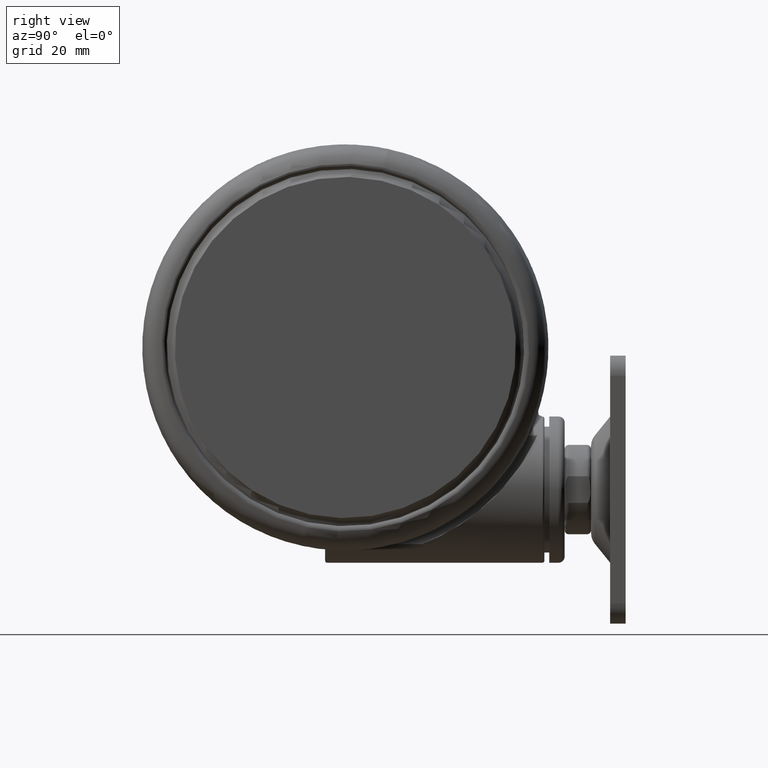
[diagram: clean part render]
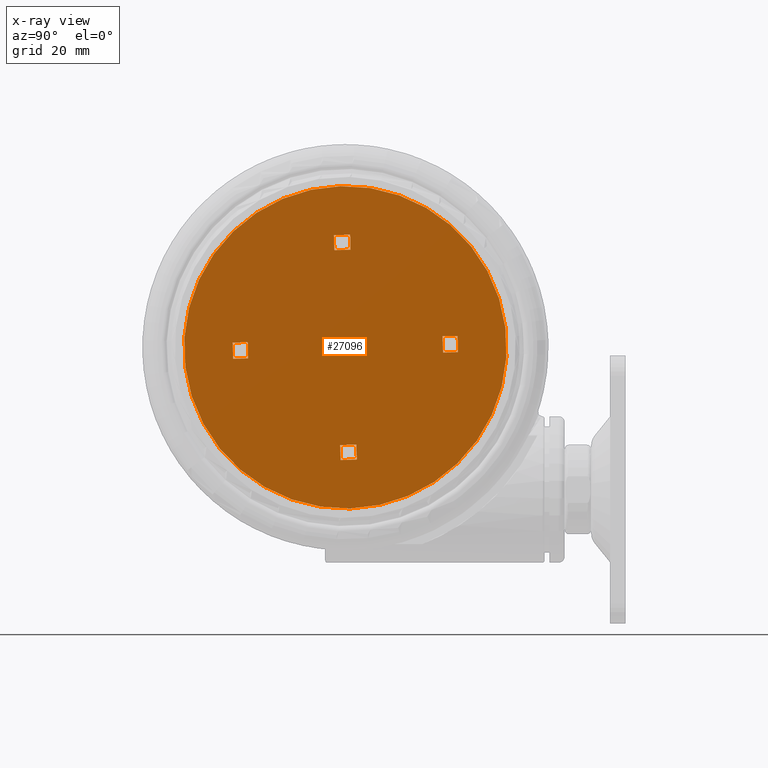
[diagram: x-ray — body ghosted, one internal face saturated and labeled with its STEP entity id]
A machine part, right view, then the same camera in x-ray: the body is ghosted and one INTERNAL B-rep face — a face not visible from any outside direction — is saturated and labeled: STEP entity #27096.
In plain terms, the highlighted planar face has unit normal (-1, 0, 0).
Its self-contained STEP definition (entity closure, byte-faithful):
#398 = LINE ( 'NONE', #24734, #64697 ) ;
#892 = VECTOR ( 'NONE', #59341, 1000.000000000000200 ) ;
#2642 = PLANE ( 'NONE',  #12645 ) ;
#3243 = CARTESIAN_POINT ( 'NONE',  ( 8.546799343271272800, -26.42426179229321500, -63.39999999999989900 ) ) ;
#3586 = ORIENTED_EDGE ( 'NONE', *, *, #72621, .T. ) ;
#4057 = VECTOR ( 'NONE', #74137, 1000.000000000000200 ) ;
#4760 = VERTEX_POINT ( 'NONE', #41470 ) ;
#5000 = VERTEX_POINT ( 'NONE', #33181 ) ;
#5075 = EDGE_LOOP ( 'NONE', ( #13655, #3586, #29585, #13600 ) ) ;
#5366 = DIRECTION ( 'NONE',  ( -0.9711594515430745900, -0.2384309536921631300, 0.0000000000000000000 ) ) ;
#5914 = EDGE_CURVE ( 'NONE', #25020, #5000, #62885, .T. ) ;
#6096 = AXIS2_PLACEMENT_3D ( 'NONE', #44219, #8024, #50301 ) ;
#6276 = EDGE_CURVE ( 'NONE', #75866, #50173, #398, .T. ) ;
#7168 = VERTEX_POINT ( 'NONE', #16708 ) ;
#8024 = DIRECTION ( 'NONE',  ( 0.0000000000000000000, -0.0000000000000000000, 1.000000000000000000 ) ) ;
#8043 = DIRECTION ( 'NONE',  ( -0.9711594515430751500, -0.2384309536921608000, 1.807003620808588200E-016 ) ) ;
#8955 = VECTOR ( 'NONE', #23244, 1000.000000000000100 ) ;
#9048 = EDGE_CURVE ( 'NONE', #50173, #60263, #9074, .T. ) ;
#9074 = LINE ( 'NONE', #35816, #55412 ) ;
#9714 = DIRECTION ( 'NONE',  ( 0.2384309536921630800, -0.9711594515430745900, 1.807003620808557600E-016 ) ) ;
#9999 = VECTOR ( 'NONE', #53687, 1000.000000000000100 ) ;
#10547 = ORIENTED_EDGE ( 'NONE', *, *, #69614, .T. ) ;
#11002 = FACE_BOUND ( 'NONE', #5075, .T. ) ;
#11098 = CARTESIAN_POINT ( 'NONE',  ( -7.664718768786188200, 22.83095803771524900, -63.39999999999989900 ) ) ;
#11454 = CARTESIAN_POINT ( 'NONE',  ( -22.83102190673762200, -7.664668683632365600, -63.39999999999989900 ) ) ;
#11525 = ORIENTED_EDGE ( 'NONE', *, *, #59049, .T. ) ;
#12645 = AXIS2_PLACEMENT_3D ( 'NONE', #44904, #50987, #14820 ) ;
#12714 = ORIENTED_EDGE ( 'NONE', *, *, #44203, .F. ) ;
#12881 = VERTEX_POINT ( 'NONE', #50981 ) ;
#13359 = DIRECTION ( 'NONE',  ( 0.2384309536921608000, -0.9711594515430751500, 0.0000000000000000000 ) ) ;
#13600 = ORIENTED_EDGE ( 'NONE', *, *, #68325, .F. ) ;
#13655 = ORIENTED_EDGE ( 'NONE', *, *, #26456, .T. ) ;
#14169 = CARTESIAN_POINT ( 'NONE',  ( 0.4768049302962262800, -1.942325795020454000, -63.39999999999989900 ) ) ;
#14403 = CARTESIAN_POINT ( 'NONE',  ( 23.78463176732993700, 3.780017093591610400, -63.39999999999989900 ) ) ;
#14820 = DIRECTION ( 'NONE',  ( -0.9711594515430747000, -0.2384309536921631100, 0.0000000000000000000 ) ) ;
#16708 = CARTESIAN_POINT ( 'NONE',  ( 22.83090795257815100, 7.664654899767533000, -63.39999999999989900 ) ) ;
#17117 = CARTESIAN_POINT ( 'NONE',  ( -7.664718768786188200, 22.83095803771524900, -63.39999999999989900 ) ) ;
#17215 = LINE ( 'NONE', #29017, #51226 ) ;
#17515 = CIRCLE ( 'NONE', #64473, 39.70000000001356000 ) ;
#17620 = DIRECTION ( 'NONE',  ( -0.9711594515430745900, -0.2384309536921630800, 0.0000000000000000000 ) ) ;
#18677 = DIRECTION ( 'NONE',  ( 0.9711594515430745900, 0.2384309536921630800, 0.0000000000000000000 ) ) ;
#18768 = VERTEX_POINT ( 'NONE', #48523 ) ;
#18980 = VECTOR ( 'NONE', #49830, 1000.000000000000100 ) ;
#19033 = VERTEX_POINT ( 'NONE', #63745 ) ;
#20505 = VECTOR ( 'NONE', #13359, 1000.000000000000000 ) ;
#20881 = CIRCLE ( 'NONE', #6096, 39.70000000001356000 ) ;
#23244 = DIRECTION ( 'NONE',  ( 0.9711594515430773700, 0.2384309536921521400, 1.807003620808514200E-016 ) ) ;
#23890 = EDGE_CURVE ( 'NONE', #60263, #49494, #77450, .T. ) ;
#23893 = VECTOR ( 'NONE', #41035, 1000.000000000000000 ) ;
#24734 = CARTESIAN_POINT ( 'NONE',  ( -6.604594394361160200, 26.90110991580910800, -63.39999999999989900 ) ) ;
#25020 = VERTEX_POINT ( 'NONE', #47289 ) ;
#26456 = EDGE_CURVE ( 'NONE', #64011, #35415, #38453, .T. ) ;
#27096 = ADVANCED_FACE ( 'NONE', ( #43097, #59153, #11002, #73301, #57275 ), #2642, .F. ) ;
#27937 = LINE ( 'NONE', #47584, #9999 ) ;
#28433 = ORIENTED_EDGE ( 'NONE', *, *, #6276, .T. ) ;
#29017 = CARTESIAN_POINT ( 'NONE',  ( 1.942261925997973400, 0.4768550154500353400, -63.39999999999989900 ) ) ;
#29024 = VERTEX_POINT ( 'NONE', #3243 ) ;
#29585 = ORIENTED_EDGE ( 'NONE', *, *, #33573, .T. ) ;
#30123 = EDGE_CURVE ( 'NONE', #29024, #25020, #36946, .T. ) ;
#30336 = VERTEX_POINT ( 'NONE', #14403 ) ;
#31504 = CARTESIAN_POINT ( 'NONE',  ( 17.24460620613448100, 45.93648831284585300, -63.39999999999989900 ) ) ;
#31986 = ORIENTED_EDGE ( 'NONE', *, *, #54771, .T. ) ;
#32383 = VECTOR ( 'NONE', #9714, 1000.000000000000200 ) ;
#32636 = VECTOR ( 'NONE', #66930, 1000.000000000000000 ) ;
#33181 = CARTESIAN_POINT ( 'NONE',  ( 3.779967008437912200, -23.78469563635259100, -63.39999999999989900 ) ) ;
#33573 = EDGE_CURVE ( 'NONE', #30336, #7168, #36438, .T. ) ;
#34323 = LINE ( 'NONE', #45895, #32383 ) ;
#35415 = VERTEX_POINT ( 'NONE', #55243 ) ;
#35816 = CARTESIAN_POINT ( 'NONE',  ( 1.942261925997973400, 0.4768550154500353400, -63.39999999999989900 ) ) ;
#36184 = LINE ( 'NONE', #68049, #4057 ) ;
#36215 = CARTESIAN_POINT ( 'NONE',  ( -1.942375880174318500, -0.4768687993186582200, -63.39999999999989900 ) ) ;
#36438 = LINE ( 'NONE', #36565, #32636 ) ;
#36565 = CARTESIAN_POINT ( 'NONE',  ( 22.83090795257815100, 7.664654899767533000, -63.39999999999989900 ) ) ;
#36603 = CARTESIAN_POINT ( 'NONE',  ( -27.37803569221568300, -4.662225406121066000, -63.39999999999989900 ) ) ;
#36862 = ORIENTED_EDGE ( 'NONE', *, *, #23890, .T. ) ;
#36946 = LINE ( 'NONE', #47716, #53078 ) ;
#38453 = LINE ( 'NONE', #31504, #20505 ) ;
#39951 = LINE ( 'NONE', #65057, #23893 ) ;
#40093 = VERTEX_POINT ( 'NONE', #51036 ) ;
#41035 = DIRECTION ( 'NONE',  ( -0.9711594515430751500, -0.2384309536921608000, 1.807003620808588200E-016 ) ) ;
#41346 = CARTESIAN_POINT ( 'NONE',  ( -23.78474572150630800, -3.780030877460069900, -63.39999999999989900 ) ) ;
#41470 = CARTESIAN_POINT ( 'NONE',  ( 7.664604814610398400, -22.83097182158384100, -63.39999999999989900 ) ) ;
#41571 = DIRECTION ( 'NONE',  ( 0.0000000000000000000, -0.0000000000000000000, 1.000000000000000000 ) ) ;
#41713 = CARTESIAN_POINT ( 'NONE',  ( 0.4768049302962262800, -1.942325795020460900, -63.39999999999989900 ) ) ;
#41940 = EDGE_CURVE ( 'NONE', #12881, #63143, #27937, .T. ) ;
#42329 = DIRECTION ( 'NONE',  ( -0.2384309536921630800, 0.9711594515430745900, 1.807003620808557600E-016 ) ) ;
#43097 = FACE_BOUND ( 'NONE', #51786, .T. ) ;
#43902 = ORIENTED_EDGE ( 'NONE', *, *, #41940, .T. ) ;
#44203 = EDGE_CURVE ( 'NONE', #75866, #49494, #34323, .T. ) ;
#44219 = CARTESIAN_POINT ( 'NONE',  ( -5.697708817253843700E-005, -6.891934311442637900E-006, -63.39999999999989900 ) ) ;
#44904 = CARTESIAN_POINT ( 'NONE',  ( -9.656510601621093300, 39.33195089556051700, -63.39999999999989900 ) ) ;
#44935 = VECTOR ( 'NONE', #42329, 1000.000000000000200 ) ;
#45895 = CARTESIAN_POINT ( 'NONE',  ( -1.942375880174318500, -0.4768687993186582200, -63.39999999999989900 ) ) ;
#47289 = CARTESIAN_POINT ( 'NONE',  ( 4.662161537098863400, -27.37798560706180200, -63.39999999999989900 ) ) ;
#47584 = CARTESIAN_POINT ( 'NONE',  ( -36.55762740936399500, 32.72741347828758100, -63.39999999999989900 ) ) ;
#47716 = CARTESIAN_POINT ( 'NONE',  ( 6.604480440185356300, -26.90112369967766200, -63.39999999999989900 ) ) ;
#47983 = DIRECTION ( 'NONE',  ( 0.2384309536921630800, -0.9711594515430745900, 1.807003620808557600E-016 ) ) ;
#48523 = CARTESIAN_POINT ( 'NONE',  ( -22.83102190673762200, -7.664668683632365600, -63.39999999999989900 ) ) ;
#49370 = ORIENTED_EDGE ( 'NONE', *, *, #76419, .F. ) ;
#49494 = VERTEX_POINT ( 'NONE', #11098 ) ;
#49531 = LINE ( 'NONE', #11454, #63689 ) ;
#49588 = ORIENTED_EDGE ( 'NONE', *, *, #9048, .T. ) ;
#49830 = DIRECTION ( 'NONE',  ( 0.9711594515430773700, 0.2384309536921521400, 1.807003620808514200E-016 ) ) ;
#50085 = VERTEX_POINT ( 'NONE', #41346 ) ;
#50173 = VERTEX_POINT ( 'NONE', #78263 ) ;
#50301 = DIRECTION ( 'NONE',  ( -0.9711594515430745900, -0.2384309536921631300, 0.0000000000000000000 ) ) ;
#50981 = CARTESIAN_POINT ( 'NONE',  ( -26.42431187744699600, -8.546863212293358100, -63.39999999999989900 ) ) ;
#50987 = DIRECTION ( 'NONE',  ( -0.0000000000000000000, 0.0000000000000000000, -1.000000000000000000 ) ) ;
#51036 = CARTESIAN_POINT ( 'NONE',  ( -38.55508720336140300, -9.465715753516420200, -63.40000000000004100 ) ) ;
#51226 = VECTOR ( 'NONE', #72336, 1000.000000000000200 ) ;
#51786 = EDGE_LOOP ( 'NONE', ( #43902, #10547, #63647, #49370 ) ) ;
#52074 = CARTESIAN_POINT ( 'NONE',  ( 26.42419792328717800, 8.546849428428473100, -63.39999999999989900 ) ) ;
#52910 = CARTESIAN_POINT ( 'NONE',  ( -8.546913297447499500, 26.42424800842446700, -63.39999999999989900 ) ) ;
#53040 = LINE ( 'NONE', #73833, #18980 ) ;
#53078 = VECTOR ( 'NONE', #17620, 1000.000000000000200 ) ;
#53687 = DIRECTION ( 'NONE',  ( -0.2384309536921521400, 0.9711594515430773700, 0.0000000000000000000 ) ) ;
#54771 = EDGE_CURVE ( 'NONE', #5000, #4760, #36184, .T. ) ;
#55243 = CARTESIAN_POINT ( 'NONE',  ( 27.37792173804044900, 4.662211622252804100, -63.39999999999989900 ) ) ;
#55374 = EDGE_CURVE ( 'NONE', #19033, #40093, #20881, .T. ) ;
#55400 = VECTOR ( 'NONE', #8043, 1000.000000000000000 ) ;
#55412 = VECTOR ( 'NONE', #47983, 1000.000000000000200 ) ;
#55851 = ORIENTED_EDGE ( 'NONE', *, *, #5914, .T. ) ;
#57275 = FACE_OUTER_BOUND ( 'NONE', #60594, .T. ) ;
#59046 = LINE ( 'NONE', #41713, #8955 ) ;
#59049 = EDGE_CURVE ( 'NONE', #40093, #19033, #17515, .T. ) ;
#59153 = FACE_BOUND ( 'NONE', #69880, .T. ) ;
#59341 = DIRECTION ( 'NONE',  ( -0.9711594515430745900, -0.2384309536921630800, -0.0000000000000000000 ) ) ;
#60263 = VERTEX_POINT ( 'NONE', #73345 ) ;
#60594 = EDGE_LOOP ( 'NONE', ( #11525, #72464 ) ) ;
#61771 = EDGE_CURVE ( 'NONE', #29024, #4760, #17215, .T. ) ;
#61872 = EDGE_LOOP ( 'NONE', ( #28433, #49588, #36862, #12714 ) ) ;
#62885 = LINE ( 'NONE', #36215, #44935 ) ;
#63143 = VERTEX_POINT ( 'NONE', #36603 ) ;
#63647 = ORIENTED_EDGE ( 'NONE', *, *, #74497, .T. ) ;
#63689 = VECTOR ( 'NONE', #65813, 1000.000000000000100 ) ;
#63745 = CARTESIAN_POINT ( 'NONE',  ( 38.55497324918506100, 9.465701969647801300, -63.40000000000004100 ) ) ;
#64011 = VERTEX_POINT ( 'NONE', #52074 ) ;
#64473 = AXIS2_PLACEMENT_3D ( 'NONE', #77694, #41571, #5366 ) ;
#64697 = VECTOR ( 'NONE', #18677, 1000.000000000000200 ) ;
#65057 = CARTESIAN_POINT ( 'NONE',  ( -0.4769188844725019700, 1.942312011151837900, -63.39999999999989900 ) ) ;
#65813 = DIRECTION ( 'NONE',  ( 0.2384309536921521400, -0.9711594515430773700, -0.0000000000000000000 ) ) ;
#66930 = DIRECTION ( 'NONE',  ( -0.2384309536921608000, 0.9711594515430751500, -0.0000000000000000000 ) ) ;
#68049 = CARTESIAN_POINT ( 'NONE',  ( 7.664604814610398400, -22.83097182158384100, -63.39999999999989900 ) ) ;
#68325 = EDGE_CURVE ( 'NONE', #64011, #7168, #39951, .T. ) ;
#68708 = ORIENTED_EDGE ( 'NONE', *, *, #61771, .F. ) ;
#69614 = EDGE_CURVE ( 'NONE', #63143, #50085, #53040, .T. ) ;
#69880 = EDGE_LOOP ( 'NONE', ( #76322, #55851, #31986, #68708 ) ) ;
#71417 = LINE ( 'NONE', #14169, #55400 ) ;
#72336 = DIRECTION ( 'NONE',  ( -0.2384309536921630800, 0.9711594515430745900, 1.807003620808557600E-016 ) ) ;
#72464 = ORIENTED_EDGE ( 'NONE', *, *, #55374, .T. ) ;
#72621 = EDGE_CURVE ( 'NONE', #35415, #30336, #71417, .T. ) ;
#73301 = FACE_BOUND ( 'NONE', #61872, .T. ) ;
#73345 = CARTESIAN_POINT ( 'NONE',  ( -3.780080962614118500, 23.78468185248445000, -63.39999999999989900 ) ) ;
#73833 = CARTESIAN_POINT ( 'NONE',  ( -0.4769188844724880900, 1.942312011151841500, -63.39999999999989900 ) ) ;
#74137 = DIRECTION ( 'NONE',  ( 0.9711594515430745900, 0.2384309536921630800, -0.0000000000000000000 ) ) ;
#74497 = EDGE_CURVE ( 'NONE', #50085, #18768, #49531, .T. ) ;
#75866 = VERTEX_POINT ( 'NONE', #52910 ) ;
#76322 = ORIENTED_EDGE ( 'NONE', *, *, #30123, .T. ) ;
#76419 = EDGE_CURVE ( 'NONE', #12881, #18768, #59046, .T. ) ;
#77450 = LINE ( 'NONE', #17117, #892 ) ;
#77694 = CARTESIAN_POINT ( 'NONE',  ( -5.697708817253843700E-005, -6.891934311442637900E-006, -63.39999999999989900 ) ) ;
#78263 = CARTESIAN_POINT ( 'NONE',  ( -4.662275491275957900, 27.37797182319686600, -63.39999999999989900 ) ) ;